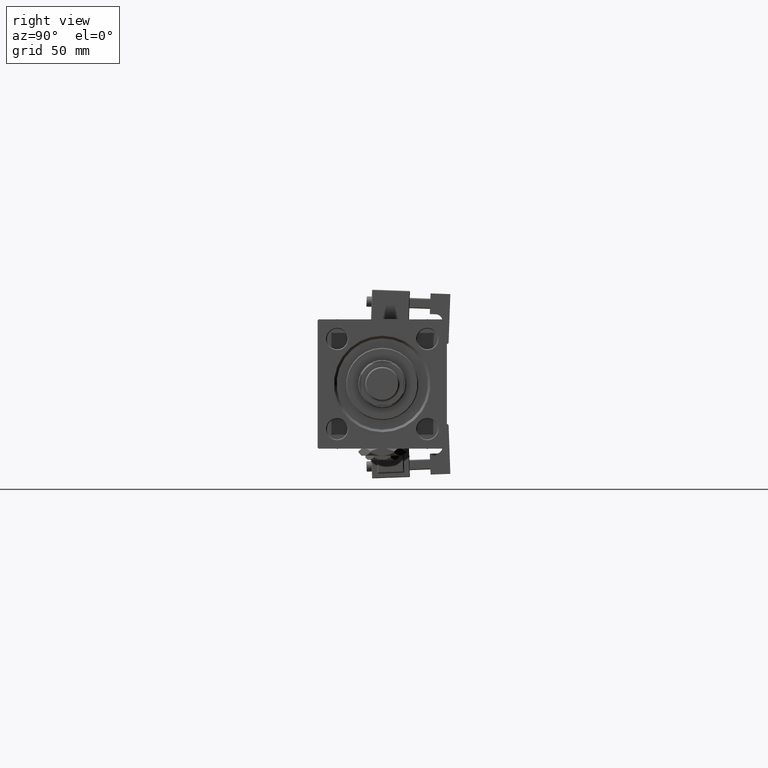
[diagram: clean part render]
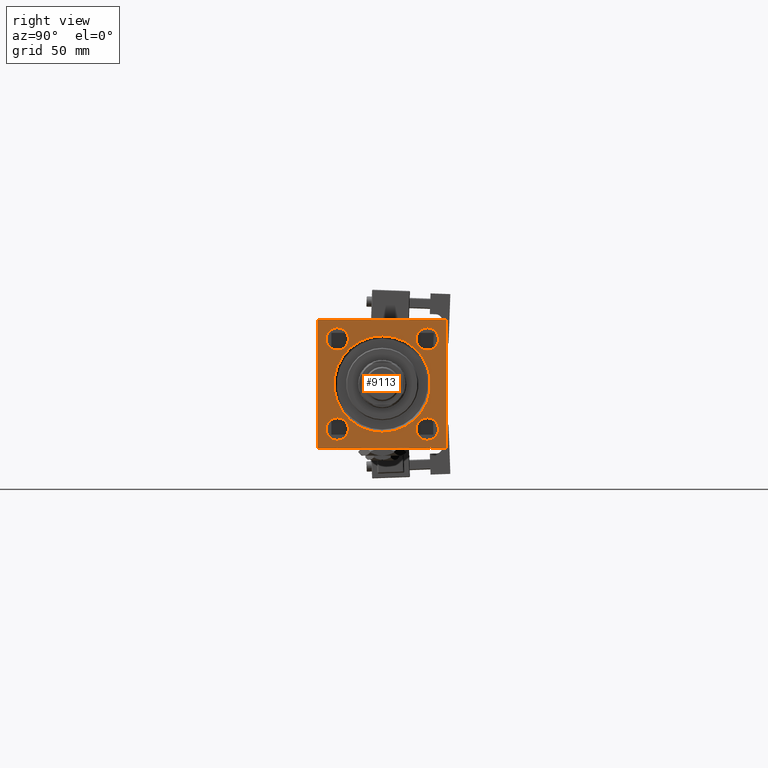
[diagram: same view with one face highlighted and labeled with its STEP entity id]
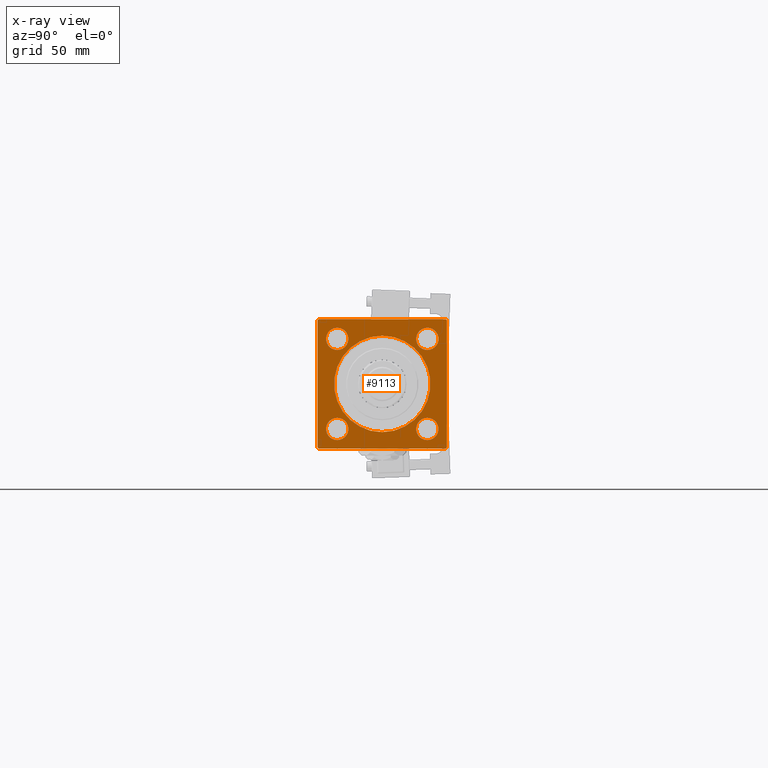
[diagram: x-ray of the same camera — body ghosted, the highlighted face saturated]
A machine part, right view. The second image highlights one B-rep face of the part: STEP entity #9113.
The next image is the same camera in x-ray: the body ghosted, the highlighted face saturated — about 0% of this face is hidden behind the body in this view.
In plain terms, the highlighted planar face has unit normal (-1, 0, 0).
Its self-contained STEP definition (entity closure, byte-faithful):
#341 = CARTESIAN_POINT ( 'NONE',  ( 333.9999999999999432, -37.50000000000000000, 37.00000000000000711 ) ) ;
#903 = DIRECTION ( 'NONE',  ( 0.000000000000000000, 0.000000000000000000, 1.000000000000000000 ) ) ;
#1047 = VERTEX_POINT ( 'NONE', #25157 ) ;
#1499 = CARTESIAN_POINT ( 'NONE',  ( 333.9999999999999432, 0.000000000000000000, 0.000000000000000000 ) ) ;
#1802 = VERTEX_POINT ( 'NONE', #37816 ) ;
#2248 = VECTOR ( 'NONE', #44243, 1000.000000000000000 ) ;
#2316 = CIRCLE ( 'NONE', #35169, 6.500000000000030198 ) ;
#2466 = EDGE_CURVE ( 'NONE', #53712, #31703, #47850, .T. ) ;
#2626 = CARTESIAN_POINT ( 'NONE',  ( 333.9999999999999432, -37.50000000000000000, 37.00000000000000711 ) ) ;
#2920 = LINE ( 'NONE', #3193, #31489 ) ;
#3044 = DIRECTION ( 'NONE',  ( -1.000000000000000000, -0.000000000000000000, 0.000000000000000000 ) ) ;
#3193 = CARTESIAN_POINT ( 'NONE',  ( 333.9999999999999432, 37.50000000000000000, 37.49999999999999289 ) ) ;
#3586 = EDGE_CURVE ( 'NONE', #7927, #20234, #39741, .T. ) ;
#4224 = EDGE_CURVE ( 'NONE', #29961, #1047, #34088, .T. ) ;
#4521 = CARTESIAN_POINT ( 'NONE',  ( 333.9999999999999432, -26.15000000000000213, -26.15000000000000213 ) ) ;
#4685 = CARTESIAN_POINT ( 'NONE',  ( 333.9999999999999432, -26.14999999999999147, 26.14999999999999503 ) ) ;
#4808 = ORIENTED_EDGE ( 'NONE', *, *, #40897, .F. ) ;
#4964 = FACE_OUTER_BOUND ( 'NONE', #24025, .T. ) ;
#5240 = PLANE ( 'NONE',  #50509 ) ;
#5486 = CARTESIAN_POINT ( 'NONE',  ( 333.9999999999999432, -26.15000000000000213, -32.65000000000004121 ) ) ;
#5745 = CIRCLE ( 'NONE', #26164, 6.500000000000037303 ) ;
#5937 = CARTESIAN_POINT ( 'NONE',  ( 333.9999999999999432, -37.00000000000001421, -37.50000000000000000 ) ) ;
#6518 = EDGE_LOOP ( 'NONE', ( #32060, #38139 ) ) ;
#6588 = CIRCLE ( 'NONE', #18110, 6.500000000000037303 ) ;
#7315 = AXIS2_PLACEMENT_3D ( 'NONE', #1499, #18442, #27059 ) ;
#7744 = CARTESIAN_POINT ( 'NONE',  ( 333.9999999999999432, -37.00000000000000000, 37.49999999999997868 ) ) ;
#7927 = VERTEX_POINT ( 'NONE', #13890 ) ;
#8350 = CARTESIAN_POINT ( 'NONE',  ( 333.9999999999999432, -37.50000000000000000, 37.49999999999997868 ) ) ;
#8729 = DIRECTION ( 'NONE',  ( 0.000000000000000000, 0.000000000000000000, 1.000000000000000000 ) ) ;
#8824 = AXIS2_PLACEMENT_3D ( 'NONE', #42691, #3044, #40843 ) ;
#9099 = ORIENTED_EDGE ( 'NONE', *, *, #9808, .T. ) ;
#9113 = ADVANCED_FACE ( 'NONE', ( #34692, #18008, #47167, #47990, #43571, #4964 ), #5240, .F. ) ;
#9225 = DIRECTION ( 'NONE',  ( -1.000000000000000000, -0.000000000000000000, 0.000000000000000000 ) ) ;
#9240 = DIRECTION ( 'NONE',  ( -1.000000000000000000, -0.000000000000000000, 0.000000000000000000 ) ) ;
#9244 = VERTEX_POINT ( 'NONE', #5486 ) ;
#9808 = EDGE_CURVE ( 'NONE', #26764, #29961, #28914, .T. ) ;
#9820 = CARTESIAN_POINT ( 'NONE',  ( 333.9999999999999432, 37.00000000000000000, 37.49999999999999289 ) ) ;
#10603 = CIRCLE ( 'NONE', #8824, 6.500000000000037303 ) ;
#11244 = LINE ( 'NONE', #2626, #31441 ) ;
#11509 = CARTESIAN_POINT ( 'NONE',  ( 333.9999999999999432, 26.14999999999999858, 26.15000000000000213 ) ) ;
#11805 = DIRECTION ( 'NONE',  ( 0.000000000000000000, 0.000000000000000000, -1.000000000000000000 ) ) ;
#12283 = ORIENTED_EDGE ( 'NONE', *, *, #20574, .T. ) ;
#13187 = CARTESIAN_POINT ( 'NONE',  ( 333.9999999999999432, 26.14999999999999858, 32.65000000000004121 ) ) ;
#13291 = ORIENTED_EDGE ( 'NONE', *, *, #3586, .T. ) ;
#13403 = ORIENTED_EDGE ( 'NONE', *, *, #2466, .T. ) ;
#13404 = CARTESIAN_POINT ( 'NONE',  ( 333.9999999999999432, -26.14999999999999147, 19.64999999999996660 ) ) ;
#13890 = CARTESIAN_POINT ( 'NONE',  ( 333.9999999999999432, 3.429011037612582176E-15, 27.99999999999994316 ) ) ;
#13937 = CIRCLE ( 'NONE', #44986, 6.500000000000037303 ) ;
#14744 = ORIENTED_EDGE ( 'NONE', *, *, #21340, .F. ) ;
#15852 = CARTESIAN_POINT ( 'NONE',  ( 333.9999999999999432, 0.000000000000000000, 0.000000000000000000 ) ) ;
#15966 = EDGE_CURVE ( 'NONE', #20234, #7927, #28597, .T. ) ;
#15992 = DIRECTION ( 'NONE',  ( 0.000000000000000000, 0.000000000000000000, 1.000000000000000000 ) ) ;
#18008 = FACE_BOUND ( 'NONE', #45537, .T. ) ;
#18110 = AXIS2_PLACEMENT_3D ( 'NONE', #51984, #9240, #51715 ) ;
#18442 = DIRECTION ( 'NONE',  ( -1.000000000000000000, -0.000000000000000000, 0.000000000000000000 ) ) ;
#18778 = CARTESIAN_POINT ( 'NONE',  ( 333.9999999999999432, 37.50000000000000000, 36.99999999999996447 ) ) ;
#19207 = CIRCLE ( 'NONE', #20140, 6.500000000000037303 ) ;
#19246 = EDGE_LOOP ( 'NONE', ( #23750, #27501 ) ) ;
#19478 = VECTOR ( 'NONE', #24471, 1000.000000000000000 ) ;
#19586 = DIRECTION ( 'NONE',  ( -0.000000000000000000, -0.7071067811865671127, -0.7071067811865279218 ) ) ;
#20112 = DIRECTION ( 'NONE',  ( -1.000000000000000000, -0.000000000000000000, 0.000000000000000000 ) ) ;
#20140 = AXIS2_PLACEMENT_3D ( 'NONE', #11509, #20112, #20382 ) ;
#20234 = VERTEX_POINT ( 'NONE', #42708 ) ;
#20382 = DIRECTION ( 'NONE',  ( 0.000000000000000000, 0.000000000000000000, 1.000000000000000000 ) ) ;
#20423 = DIRECTION ( 'NONE',  ( -1.000000000000000000, -0.000000000000000000, 0.000000000000000000 ) ) ;
#20574 = EDGE_CURVE ( 'NONE', #48828, #26764, #11244, .T. ) ;
#20951 = CARTESIAN_POINT ( 'NONE',  ( 333.9999999999999432, 26.14999999999999858, -26.15000000000000213 ) ) ;
#21189 = DIRECTION ( 'NONE',  ( -1.000000000000000000, -0.000000000000000000, 0.000000000000000000 ) ) ;
#21280 = CIRCLE ( 'NONE', #27492, 6.500000000000037303 ) ;
#21340 = EDGE_CURVE ( 'NONE', #53712, #40601, #2920, .T. ) ;
#21475 = EDGE_CURVE ( 'NONE', #53100, #50619, #5745, .T. ) ;
#21482 = CARTESIAN_POINT ( 'NONE',  ( 333.9999999999999432, 37.50000000000000000, -37.50000000000000000 ) ) ;
#21639 = VERTEX_POINT ( 'NONE', #42271 ) ;
#22187 = CARTESIAN_POINT ( 'NONE',  ( 333.9999999999999432, 0.000000000000000000, 0.000000000000000000 ) ) ;
#22598 = VERTEX_POINT ( 'NONE', #42566 ) ;
#23144 = CARTESIAN_POINT ( 'NONE',  ( 333.9999999999999432, 26.14999999999999858, -32.65000000000004121 ) ) ;
#23396 = EDGE_CURVE ( 'NONE', #22598, #9244, #6588, .T. ) ;
#23750 = ORIENTED_EDGE ( 'NONE', *, *, #43181, .T. ) ;
#24025 = EDGE_LOOP ( 'NONE', ( #9099, #27858, #4808, #49194, #14744, #13403, #31641, #12283 ) ) ;
#24471 = DIRECTION ( 'NONE',  ( 0.000000000000000000, -9.251858538542972814E-17, -1.000000000000000000 ) ) ;
#24596 = AXIS2_PLACEMENT_3D ( 'NONE', #4685, #26329, #25501 ) ;
#25157 = CARTESIAN_POINT ( 'NONE',  ( 333.9999999999999432, -37.00000000000001421, -37.50000000000000000 ) ) ;
#25471 = EDGE_CURVE ( 'NONE', #1802, #40601, #36192, .T. ) ;
#25501 = DIRECTION ( 'NONE',  ( 0.000000000000000000, 0.000000000000000000, 1.000000000000000000 ) ) ;
#25904 = ORIENTED_EDGE ( 'NONE', *, *, #21475, .T. ) ;
#26164 = AXIS2_PLACEMENT_3D ( 'NONE', #20951, #34286, #8729 ) ;
#26329 = DIRECTION ( 'NONE',  ( -1.000000000000000000, -0.000000000000000000, 0.000000000000000000 ) ) ;
#26447 = CARTESIAN_POINT ( 'NONE',  ( 333.9999999999999432, -26.14999999999999147, 26.14999999999999503 ) ) ;
#26764 = VERTEX_POINT ( 'NONE', #341 ) ;
#26985 = ORIENTED_EDGE ( 'NONE', *, *, #34893, .T. ) ;
#27059 = DIRECTION ( 'NONE',  ( 0.000000000000000000, 0.000000000000000000, 1.000000000000000000 ) ) ;
#27492 = AXIS2_PLACEMENT_3D ( 'NONE', #4521, #9225, #42013 ) ;
#27501 = ORIENTED_EDGE ( 'NONE', *, *, #23396, .T. ) ;
#27858 = ORIENTED_EDGE ( 'NONE', *, *, #4224, .T. ) ;
#28597 = CIRCLE ( 'NONE', #7315, 27.99999999999994316 ) ;
#28914 = LINE ( 'NONE', #8350, #19478 ) ;
#29228 = VECTOR ( 'NONE', #41019, 1000.000000000000000 ) ;
#29961 = VERTEX_POINT ( 'NONE', #36678 ) ;
#30637 = DIRECTION ( 'NONE',  ( 0.000000000000000000, -1.000000000000000000, 0.000000000000000000 ) ) ;
#30949 = VECTOR ( 'NONE', #30637, 1000.000000000000000 ) ;
#31441 = VECTOR ( 'NONE', #19586, 1000.000000000000000 ) ;
#31489 = VECTOR ( 'NONE', #11805, 1000.000000000000000 ) ;
#31641 = ORIENTED_EDGE ( 'NONE', *, *, #44897, .T. ) ;
#31703 = VERTEX_POINT ( 'NONE', #37598 ) ;
#32060 = ORIENTED_EDGE ( 'NONE', *, *, #35702, .T. ) ;
#32547 = ORIENTED_EDGE ( 'NONE', *, *, #15966, .T. ) ;
#32580 = CARTESIAN_POINT ( 'NONE',  ( 333.9999999999999432, 26.14999999999999858, -19.64999999999997016 ) ) ;
#32676 = CARTESIAN_POINT ( 'NONE',  ( 333.9999999999999432, 37.50000000000000000, 37.49999999999999289 ) ) ;
#33211 = EDGE_LOOP ( 'NONE', ( #41756, #25904 ) ) ;
#34088 = LINE ( 'NONE', #5937, #40709 ) ;
#34286 = DIRECTION ( 'NONE',  ( -1.000000000000000000, -0.000000000000000000, 0.000000000000000000 ) ) ;
#34440 = AXIS2_PLACEMENT_3D ( 'NONE', #15852, #40574, #49730 ) ;
#34692 = FACE_BOUND ( 'NONE', #6518, .T. ) ;
#34893 = EDGE_CURVE ( 'NONE', #43118, #43431, #2316, .T. ) ;
#34960 = DIRECTION ( 'NONE',  ( 0.000000000000000000, 0.000000000000000000, 1.000000000000000000 ) ) ;
#35169 = AXIS2_PLACEMENT_3D ( 'NONE', #26447, #21189, #903 ) ;
#35702 = EDGE_CURVE ( 'NONE', #21639, #48028, #19207, .T. ) ;
#36192 = LINE ( 'NONE', #48674, #2248 ) ;
#36489 = EDGE_CURVE ( 'NONE', #43431, #43118, #43253, .T. ) ;
#36678 = CARTESIAN_POINT ( 'NONE',  ( 333.9999999999999432, -37.50000000000000711, -36.99999999999997868 ) ) ;
#37057 = VECTOR ( 'NONE', #43708, 1000.000000000000000 ) ;
#37469 = EDGE_CURVE ( 'NONE', #50619, #53100, #13937, .T. ) ;
#37598 = CARTESIAN_POINT ( 'NONE',  ( 333.9999999999999432, 37.00000000000000000, 37.49999999999999289 ) ) ;
#37816 = CARTESIAN_POINT ( 'NONE',  ( 333.9999999999999432, 36.99999999999997158, -37.50000000000000000 ) ) ;
#38139 = ORIENTED_EDGE ( 'NONE', *, *, #42478, .T. ) ;
#38250 = EDGE_LOOP ( 'NONE', ( #32547, #13291 ) ) ;
#39741 = CIRCLE ( 'NONE', #34440, 27.99999999999994316 ) ;
#40574 = DIRECTION ( 'NONE',  ( -1.000000000000000000, -0.000000000000000000, 0.000000000000000000 ) ) ;
#40601 = VERTEX_POINT ( 'NONE', #48171 ) ;
#40709 = VECTOR ( 'NONE', #42705, 1000.000000000000000 ) ;
#40712 = CARTESIAN_POINT ( 'NONE',  ( 333.9999999999999432, 26.14999999999999858, -26.15000000000000213 ) ) ;
#40843 = DIRECTION ( 'NONE',  ( 0.000000000000000000, 0.000000000000000000, 1.000000000000000000 ) ) ;
#40897 = EDGE_CURVE ( 'NONE', #1802, #1047, #42314, .T. ) ;
#41019 = DIRECTION ( 'NONE',  ( 0.000000000000000000, -1.000000000000000000, -1.850371707708594316E-16 ) ) ;
#41756 = ORIENTED_EDGE ( 'NONE', *, *, #37469, .T. ) ;
#42013 = DIRECTION ( 'NONE',  ( 0.000000000000000000, 0.000000000000000000, 1.000000000000000000 ) ) ;
#42271 = CARTESIAN_POINT ( 'NONE',  ( 333.9999999999999432, 26.14999999999999858, 19.64999999999996660 ) ) ;
#42314 = LINE ( 'NONE', #21482, #30949 ) ;
#42478 = EDGE_CURVE ( 'NONE', #48028, #21639, #10603, .T. ) ;
#42566 = CARTESIAN_POINT ( 'NONE',  ( 333.9999999999999432, -26.15000000000000213, -19.64999999999997016 ) ) ;
#42691 = CARTESIAN_POINT ( 'NONE',  ( 333.9999999999999432, 26.14999999999999858, 26.15000000000000213 ) ) ;
#42705 = DIRECTION ( 'NONE',  ( 0.000000000000000000, 0.7071067811865279218, -0.7071067811865671127 ) ) ;
#42708 = CARTESIAN_POINT ( 'NONE',  ( 333.9999999999999432, 0.000000000000000000, -27.99999999999994316 ) ) ;
#42778 = CARTESIAN_POINT ( 'NONE',  ( 333.9999999999999432, -26.14999999999999147, 32.65000000000002700 ) ) ;
#43118 = VERTEX_POINT ( 'NONE', #13404 ) ;
#43181 = EDGE_CURVE ( 'NONE', #9244, #22598, #21280, .T. ) ;
#43253 = CIRCLE ( 'NONE', #24596, 6.500000000000030198 ) ;
#43431 = VERTEX_POINT ( 'NONE', #42778 ) ;
#43571 = FACE_BOUND ( 'NONE', #38250, .T. ) ;
#43708 = DIRECTION ( 'NONE',  ( 0.000000000000000000, -0.7071067811865279218, 0.7071067811865672237 ) ) ;
#43724 = ORIENTED_EDGE ( 'NONE', *, *, #36489, .T. ) ;
#43834 = DIRECTION ( 'NONE',  ( -1.000000000000000000, -0.000000000000000000, 0.000000000000000000 ) ) ;
#44243 = DIRECTION ( 'NONE',  ( -0.000000000000000000, 0.7071067811865622277, 0.7071067811865328068 ) ) ;
#44897 = EDGE_CURVE ( 'NONE', #31703, #48828, #49345, .T. ) ;
#44986 = AXIS2_PLACEMENT_3D ( 'NONE', #40712, #20423, #15992 ) ;
#45537 = EDGE_LOOP ( 'NONE', ( #26985, #43724 ) ) ;
#47167 = FACE_BOUND ( 'NONE', #19246, .T. ) ;
#47850 = LINE ( 'NONE', #9820, #37057 ) ;
#47990 = FACE_BOUND ( 'NONE', #33211, .T. ) ;
#48028 = VERTEX_POINT ( 'NONE', #13187 ) ;
#48171 = CARTESIAN_POINT ( 'NONE',  ( 333.9999999999999432, 37.50000000000000000, -36.99999999999999289 ) ) ;
#48674 = CARTESIAN_POINT ( 'NONE',  ( 333.9999999999999432, 37.50000000000000000, -36.99999999999999289 ) ) ;
#48828 = VERTEX_POINT ( 'NONE', #7744 ) ;
#49194 = ORIENTED_EDGE ( 'NONE', *, *, #25471, .T. ) ;
#49345 = LINE ( 'NONE', #32676, #29228 ) ;
#49730 = DIRECTION ( 'NONE',  ( 0.000000000000000000, 0.000000000000000000, 1.000000000000000000 ) ) ;
#50509 = AXIS2_PLACEMENT_3D ( 'NONE', #22187, #43834, #34960 ) ;
#50619 = VERTEX_POINT ( 'NONE', #23144 ) ;
#51715 = DIRECTION ( 'NONE',  ( 0.000000000000000000, 0.000000000000000000, 1.000000000000000000 ) ) ;
#51984 = CARTESIAN_POINT ( 'NONE',  ( 333.9999999999999432, -26.15000000000000213, -26.15000000000000213 ) ) ;
#53100 = VERTEX_POINT ( 'NONE', #32580 ) ;
#53712 = VERTEX_POINT ( 'NONE', #18778 ) ;